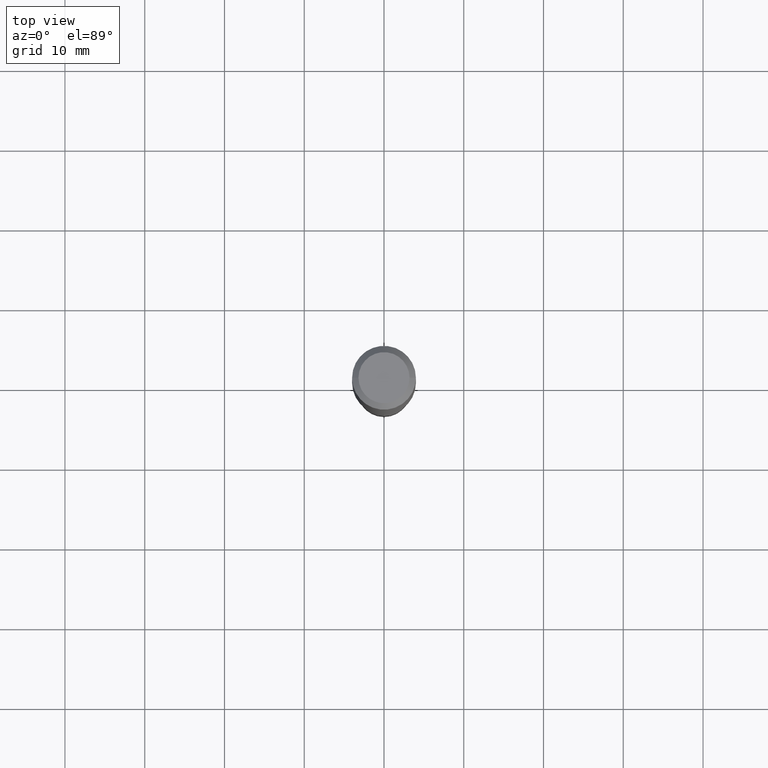
[diagram: clean part render]
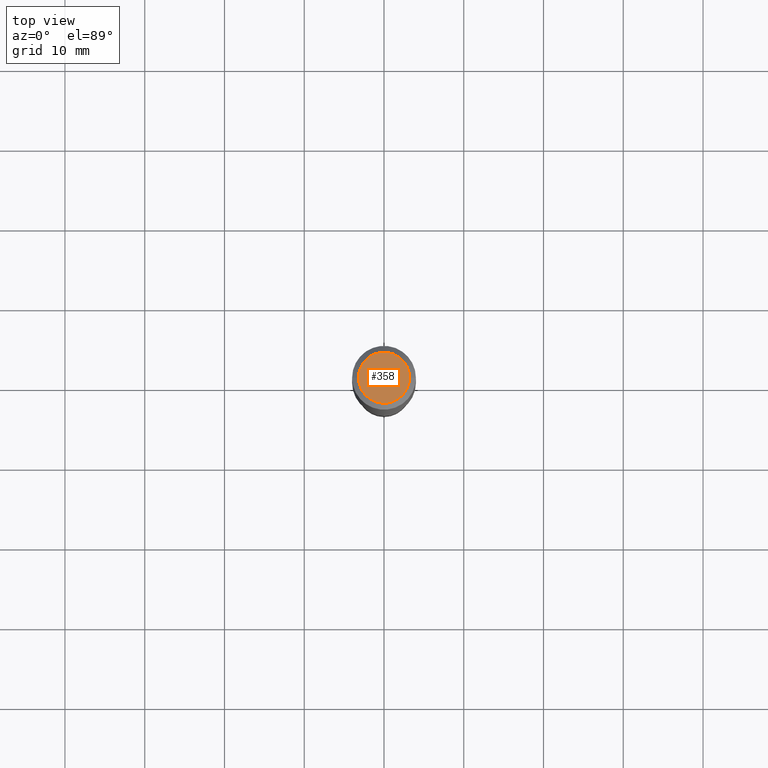
[diagram: same view with one face highlighted and labeled with its STEP entity id]
A machine part, top view. The second image highlights one B-rep face of the part: STEP entity #358.
In plain terms, the highlighted planar face has unit normal (0, -0, -1).
Its self-contained STEP definition (entity closure, byte-faithful):
#3 = VERTEX_POINT ( 'NONE', #342 ) ;
#66 = DIRECTION ( 'NONE',  ( -2.445468806185136597E-29, 3.491481338843145583E-15, 1.000000000000000000 ) ) ;
#105 = CARTESIAN_POINT ( 'NONE',  ( -4.719860820353100843E-47, 6.738710358733633822E-33, 1.930043355456229866E-18 ) ) ;
#119 = AXIS2_PLACEMENT_3D ( 'NONE', #105, #247, #301 ) ;
#154 = CARTESIAN_POINT ( 'NONE',  ( -9.439721640706201686E-47, 1.347742071746726764E-32, 3.860086710912459732E-18 ) ) ;
#184 = CIRCLE ( 'NONE', #390, 0.1260000000000000009 ) ;
#186 = DIRECTION ( 'NONE',  ( 1.000000000000000000, -6.982962677686265922E-15, 4.876281427513067258E-29 ) ) ;
#190 = ORIENTED_EDGE ( 'NONE', *, *, #295, .T. ) ;
#217 = CIRCLE ( 'NONE', #299, 0.1260000000000000009 ) ;
#247 = DIRECTION ( 'NONE',  ( 2.438088387897960049E-29, -3.491481338843145188E-15, -1.000000000000000000 ) ) ;
#291 = CARTESIAN_POINT ( 'NONE',  ( -9.439721640706201686E-47, 1.347742071746726764E-32, 3.860086710912459732E-18 ) ) ;
#295 = EDGE_CURVE ( 'NONE', #352, #3, #217, .T. ) ;
#299 = AXIS2_PLACEMENT_3D ( 'NONE', #154, #377, #490 ) ;
#301 = DIRECTION ( 'NONE',  ( -1.000000000000000000, 6.982962677686265922E-15, -4.876176775795935793E-29 ) ) ;
#323 = EDGE_CURVE ( 'NONE', #3, #352, #184, .T. ) ;
#331 = ORIENTED_EDGE ( 'NONE', *, *, #323, .T. ) ;
#332 = PLANE ( 'NONE',  #119 ) ;
#336 = FACE_OUTER_BOUND ( 'NONE', #412, .T. ) ;
#342 = CARTESIAN_POINT ( 'NONE',  ( -0.1260000000000000009, 9.348441284752484904E-16, 3.860086710906114178E-18 ) ) ;
#352 = VERTEX_POINT ( 'NONE', #415 ) ;
#358 = ADVANCED_FACE ( 'NONE', ( #336 ), #332, .F. ) ;
#377 = DIRECTION ( 'NONE',  ( -2.445468806185136597E-29, 3.491481338843145583E-15, 1.000000000000000000 ) ) ;
#390 = AXIS2_PLACEMENT_3D ( 'NONE', #291, #66, #186 ) ;
#412 = EDGE_LOOP ( 'NONE', ( #331, #190 ) ) ;
#415 = CARTESIAN_POINT ( 'NONE',  ( 0.1260000000000000009, -1.027466422270894443E-15, 3.860086710919128072E-18 ) ) ;
#490 = DIRECTION ( 'NONE',  ( 1.000000000000000000, -6.982962677686265922E-15, 4.876281427513067258E-29 ) ) ;